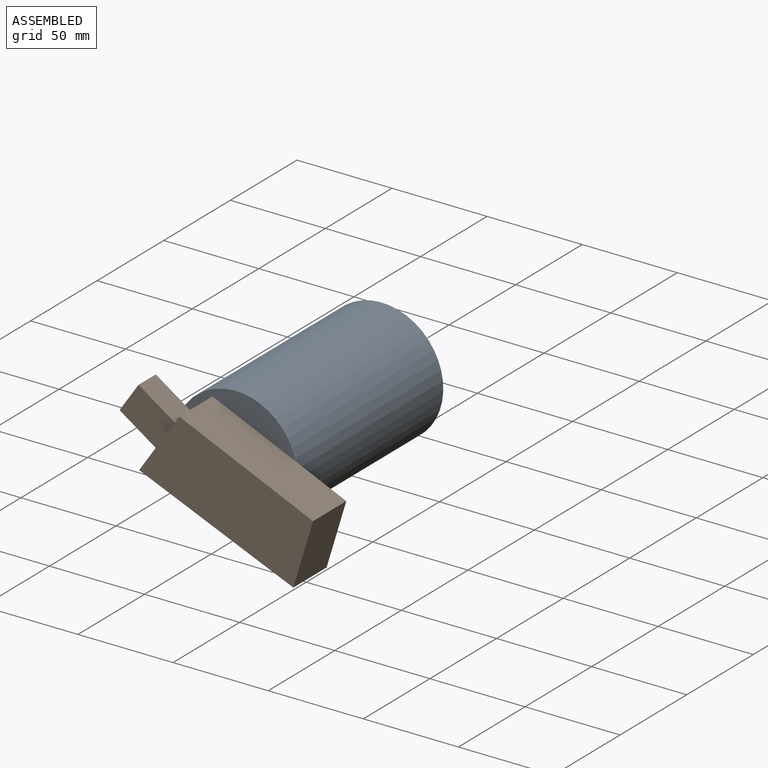
[diagram: assembled view]
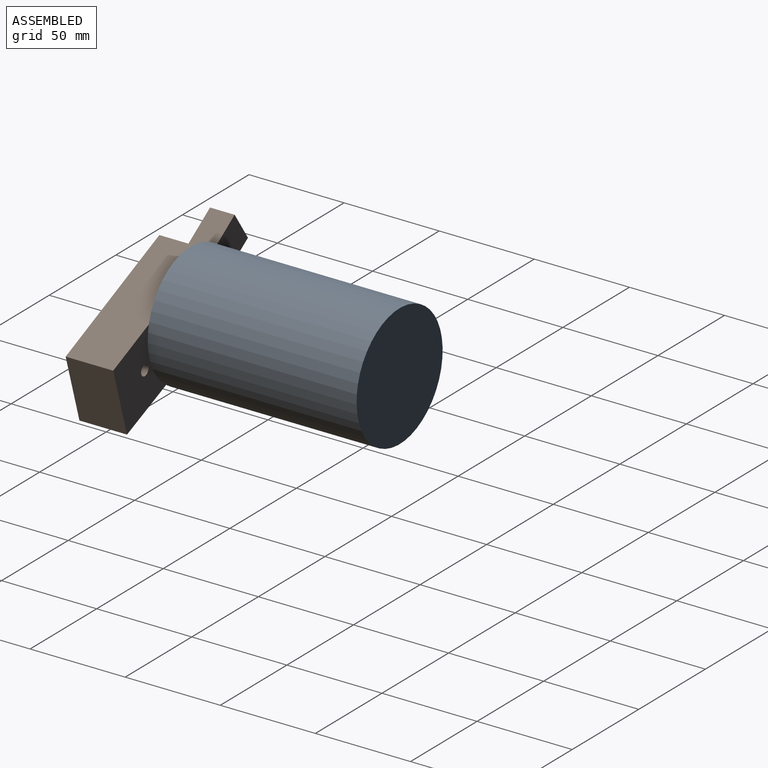
[diagram: assembled view, second angle]
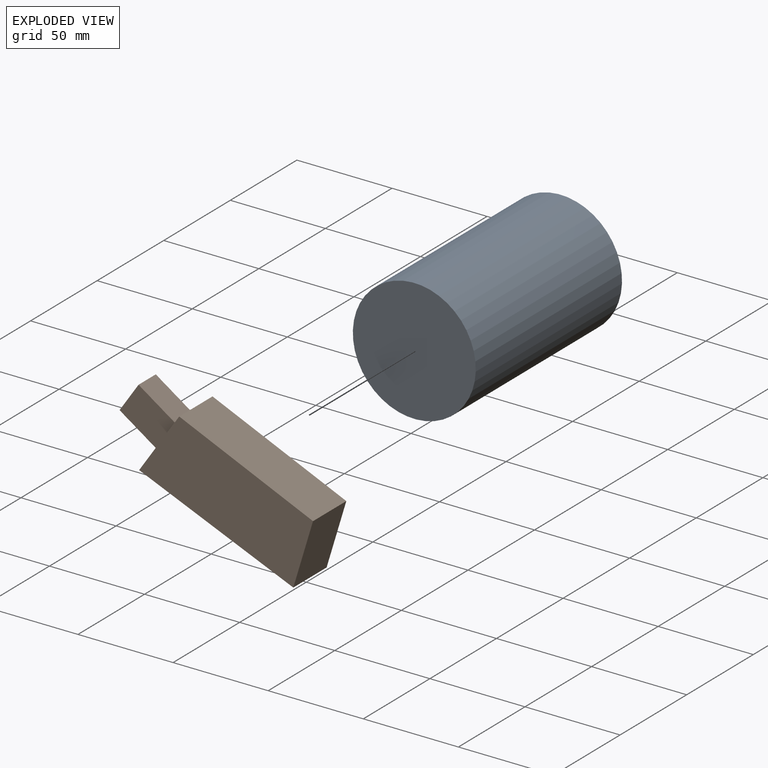
[diagram: exploded view]
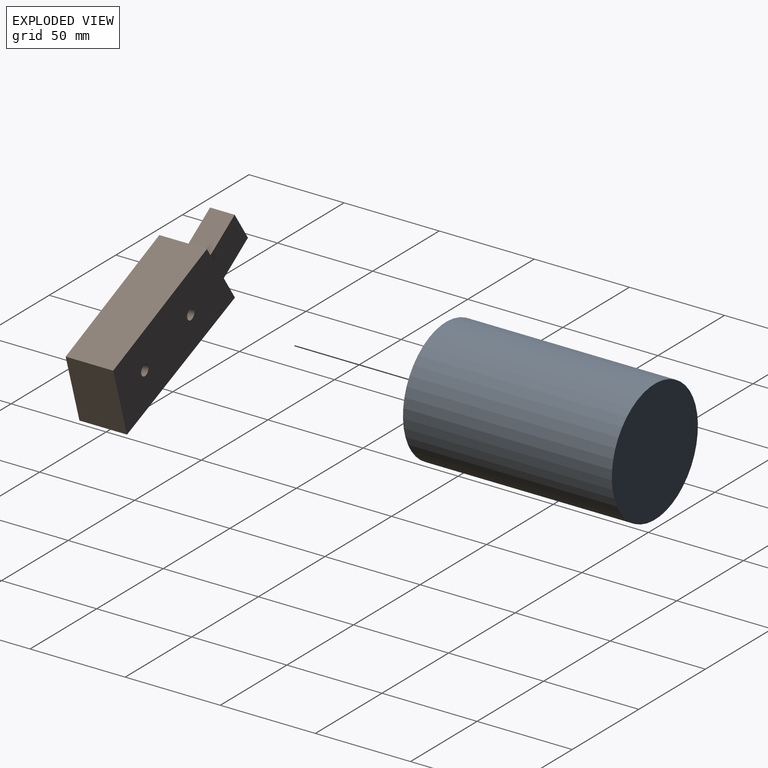
[diagram: exploded view, second angle]
ASSEMBLY  parts=2 mates=3
PART A: 3 faces, bbox 64.6x64.6x109.8 mm
  f0: cylinder r=32.32mm len=109.8mm, axis (0,0,-1), area 22296.5mm2, adj f1,f2
  f1: plane 64.64x64.64mm, normal (0,0,1), area 3281.4mm2, adj f0
  f2: plane 64.64x64.64mm, normal (0,0,-1), area 3281.4mm2, adj f0
PART B: 15 faces, bbox 107.2x25x70.2 mm
  f0: plane 70.34x30.92mm, normal (0.4,0,0.92), area 1920.9mm2, adj f1,f3,f4,f5
  f1: plane 31.09x25mm, normal (-0.83,0,0.56), area 708.7mm2, adj f0,f2,f4,f5,f6,f7,f8,f9
  f2: plane 81.04x34.15mm, normal (-0.39,0,-0.92), area 2198.6mm2, adj f1,f3,f4,f5
  f3: plane 34.32x25mm, normal (0.96,0,-0.29), area 896.3mm2, adj f0,f2,f4,f5
  f4: plane 91.41x65.24mm, normal (0,-1,0), area 2986.9mm2, adj f0,f1,f2,f3
  f5: plane 91.41x65.24mm, normal (0,1,0), area 2939.4mm2, adj f0,f1,f2,f3,f12,f14
  f6: plane 20.7x14.02mm, normal (0.56,0,0.83), area 323.4mm2, adj f1,f7,f9,f10
  f7: plane 30.68x28.76mm, normal (0,1,0), area 444.9mm2, adj f1,f6,f8,f10
  f8: plane 20.7x14.02mm, normal (-0.56,0,-0.83), area 323.4mm2, adj f1,f7,f9,f10
  f9: plane 30.68x28.76mm, normal (0,-1,0), area 444.9mm2, adj f1,f6,f8,f10
  f10: plane 14.73x12.94mm, normal (-0.83,0,0.56), area 230.2mm2, adj f6,f7,f8,f9
  f11: cone r=0mm half-angle=59deg, axis (0,1,0), area 27.7mm2, adj f12
  f12: cylinder r=2.75mm len=12mm, axis (0,1,0), area 207.3mm2, adj f5,f11
  f13: cone r=0mm half-angle=59deg, axis (0,1,0), area 27.7mm2, adj f14
  f14: cylinder r=2.75mm len=12mm, axis (0,1,0), area 207.3mm2, adj f5,f13
PLACE A rot(axis=(0.99,0.09,-0.09),90.5deg) t=(-45.81,172.17,72.81)mm
PLACE B t=(-23.53,62.37,41.11)mm fixed
MATE planar A.f0 <-> B.f5  axis (0,-1,0) through (-45.81,62.37,72.81)mm
MATE planar A.f0 <-> A.f0  axis (0,1,0) through (-45.81,172.17,72.81)mm
MATE cylindrical A.f0 <-> B.f11  axis (0,1,0) through (-45.81,117.27,72.81)mm
